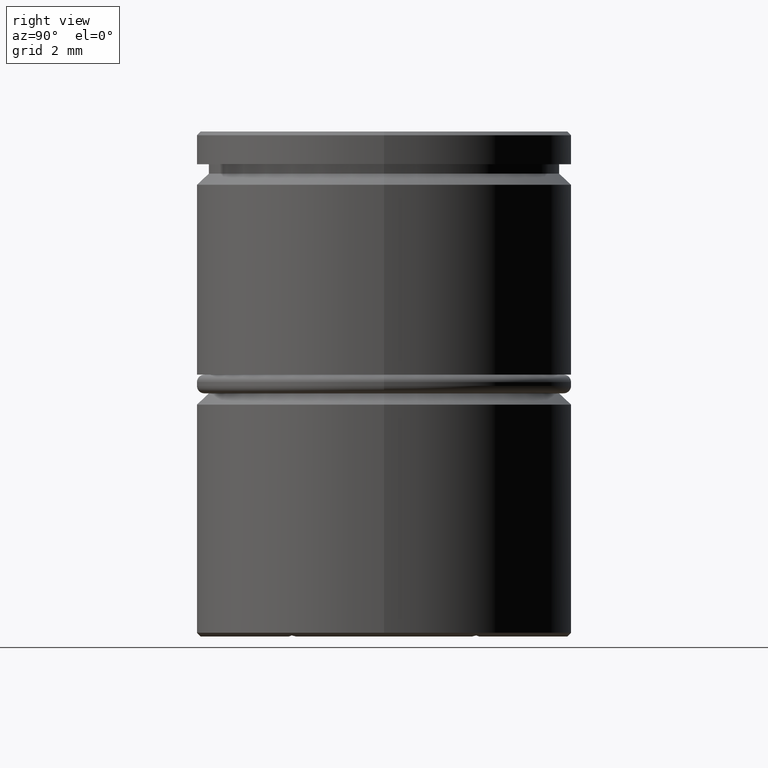
[diagram: clean part render]
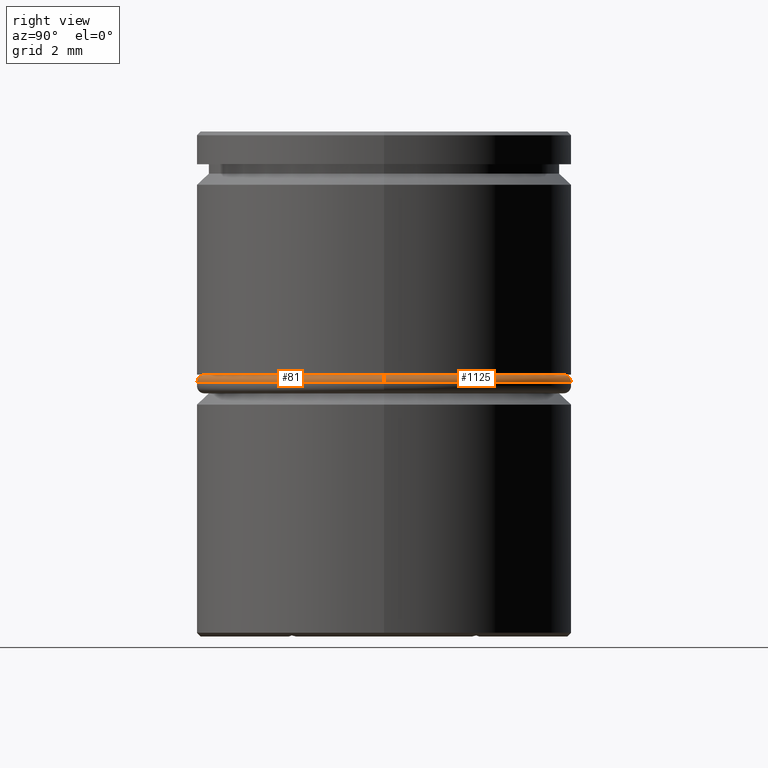
[diagram: same view with one multi-face feature highlighted, each face labeled with its STEP entity id]
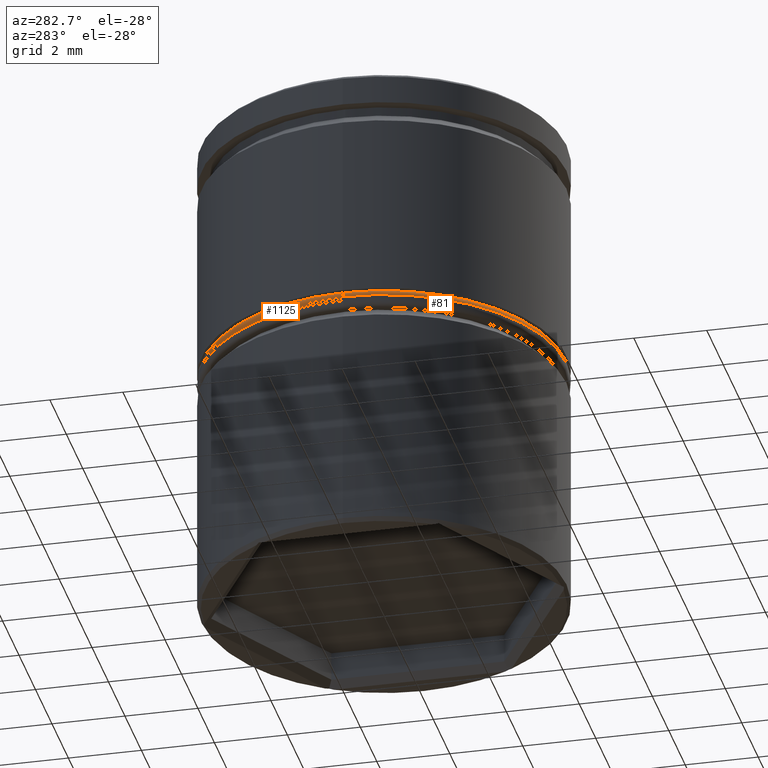
[diagram: same view with one multi-face feature highlighted, each face labeled with its STEP entity id]
A machine part, right view. The highlighted faces form ONE feature: a constant-radius fillet chain: 2 tangent blend faces with common blend radius 0.2 mm. The faces share edges in the B-rep.
A second angle (auxiliary view) of the same feature is appended — it is thin or edge-on in the first view.
Their STEP definitions:
[1] entity #1125 (Torus):
#20 = VERTEX_POINT ( 'NONE', #88 ) ;
#38 = TOROIDAL_SURFACE ( 'NONE', #1225, 4.800000000000000711, 0.2000000000000000111 ) ;
#88 = CARTESIAN_POINT ( 'NONE',  ( -5.000000000000000000, 6.123233995736766282E-16, -6.699999999999997513 ) ) ;
#91 = EDGE_CURVE ( 'NONE', #1377, #684, #1014, .T. ) ;
#100 = DIRECTION ( 'NONE',  ( -1.000000000000000000, -1.224646799147353454E-16, 0.000000000000000000 ) ) ;
#121 = DIRECTION ( 'NONE',  ( -1.000000000000000000, 0.000000000000000000, 0.000000000000000000 ) ) ;
#163 = ORIENTED_EDGE ( 'NONE', *, *, #91, .F. ) ;
#167 = FACE_OUTER_BOUND ( 'NONE', #212, .T. ) ;
#172 = CIRCLE ( 'NONE', #417, 0.1999999999999996503 ) ;
#182 = CARTESIAN_POINT ( 'NONE',  ( 0.000000000000000000, 0.000000000000000000, -6.699999999999997513 ) ) ;
#212 = EDGE_LOOP ( 'NONE', ( #163, #667, #618, #1161 ) ) ;
#373 = AXIS2_PLACEMENT_3D ( 'NONE', #587, #918, #1342 ) ;
#392 = DIRECTION ( 'NONE',  ( 0.000000000000000000, 0.000000000000000000, -1.000000000000000000 ) ) ;
#417 = AXIS2_PLACEMENT_3D ( 'NONE', #1149, #1380, #557 ) ;
#516 = EDGE_CURVE ( 'NONE', #1377, #1163, #1016, .T. ) ;
#545 = EDGE_CURVE ( 'NONE', #684, #20, #172, .T. ) ;
#557 = DIRECTION ( 'NONE',  ( 0.000000000000000000, 0.000000000000000000, -1.000000000000000000 ) ) ;
#587 = CARTESIAN_POINT ( 'NONE',  ( 0.000000000000000000, 0.000000000000000000, -6.699999999999997513 ) ) ;
#603 = CIRCLE ( 'NONE', #373, 5.000000000000000000 ) ;
#618 = ORIENTED_EDGE ( 'NONE', *, *, #1359, .F. ) ;
#635 = CARTESIAN_POINT ( 'NONE',  ( 0.000000000000000000, 0.000000000000000000, -6.499999999999999112 ) ) ;
#667 = ORIENTED_EDGE ( 'NONE', *, *, #516, .T. ) ;
#684 = VERTEX_POINT ( 'NONE', #1286 ) ;
#822 = CARTESIAN_POINT ( 'NONE',  ( 5.000000000000000000, 0.000000000000000000, -6.699999999999997513 ) ) ;
#825 = CARTESIAN_POINT ( 'NONE',  ( 4.800000000000000711, 6.000769315822031726E-16, -6.499999999999999112 ) ) ;
#918 = DIRECTION ( 'NONE',  ( 0.000000000000000000, 0.000000000000000000, -1.000000000000000000 ) ) ;
#920 = DIRECTION ( 'NONE',  ( -1.000000000000000000, 0.000000000000000000, 0.000000000000000000 ) ) ;
#969 = AXIS2_PLACEMENT_3D ( 'NONE', #635, #1375, #121 ) ;
#1014 = CIRCLE ( 'NONE', #969, 4.800000000000000711 ) ;
#1016 = CIRCLE ( 'NONE', #1106, 0.1999999999999996503 ) ;
#1106 = AXIS2_PLACEMENT_3D ( 'NONE', #1272, #1164, #100 ) ;
#1125 = ADVANCED_FACE ( 'NONE', ( #167 ), #38, .T. ) ;
#1149 = CARTESIAN_POINT ( 'NONE',  ( -4.800000000000000711, 0.000000000000000000, -6.699999999999997513 ) ) ;
#1161 = ORIENTED_EDGE ( 'NONE', *, *, #545, .F. ) ;
#1163 = VERTEX_POINT ( 'NONE', #822 ) ;
#1164 = DIRECTION ( 'NONE',  ( -1.224646799147353207E-16, 1.000000000000000000, 0.000000000000000000 ) ) ;
#1225 = AXIS2_PLACEMENT_3D ( 'NONE', #182, #392, #920 ) ;
#1272 = CARTESIAN_POINT ( 'NONE',  ( 4.800000000000000711, 5.878304635907295197E-16, -6.699999999999997513 ) ) ;
#1286 = CARTESIAN_POINT ( 'NONE',  ( -4.800000000000000711, 0.000000000000000000, -6.499999999999999112 ) ) ;
#1342 = DIRECTION ( 'NONE',  ( -1.000000000000000000, 0.000000000000000000, 0.000000000000000000 ) ) ;
#1359 = EDGE_CURVE ( 'NONE', #20, #1163, #603, .T. ) ;
#1375 = DIRECTION ( 'NONE',  ( -0.000000000000000000, -0.000000000000000000, 1.000000000000000000 ) ) ;
#1377 = VERTEX_POINT ( 'NONE', #825 ) ;
#1380 = DIRECTION ( 'NONE',  ( -0.000000000000000000, -1.000000000000000000, -0.000000000000000000 ) ) ;
[2] entity #81 (Torus):
#20 = VERTEX_POINT ( 'NONE', #88 ) ;
#68 = DIRECTION ( 'NONE',  ( 0.000000000000000000, 0.000000000000000000, -1.000000000000000000 ) ) ;
#71 = DIRECTION ( 'NONE',  ( -0.000000000000000000, -0.000000000000000000, 1.000000000000000000 ) ) ;
#81 = ADVANCED_FACE ( 'NONE', ( #740 ), #215, .T. ) ;
#88 = CARTESIAN_POINT ( 'NONE',  ( -5.000000000000000000, 6.123233995736766282E-16, -6.699999999999997513 ) ) ;
#100 = DIRECTION ( 'NONE',  ( -1.000000000000000000, -1.224646799147353454E-16, 0.000000000000000000 ) ) ;
#144 = AXIS2_PLACEMENT_3D ( 'NONE', #1011, #71, #1234 ) ;
#172 = CIRCLE ( 'NONE', #417, 0.1999999999999996503 ) ;
#215 = TOROIDAL_SURFACE ( 'NONE', #238, 4.800000000000000711, 0.2000000000000000111 ) ;
#238 = AXIS2_PLACEMENT_3D ( 'NONE', #448, #655, #642 ) ;
#292 = EDGE_CURVE ( 'NONE', #684, #1377, #573, .T. ) ;
#417 = AXIS2_PLACEMENT_3D ( 'NONE', #1149, #1380, #557 ) ;
#448 = CARTESIAN_POINT ( 'NONE',  ( 0.000000000000000000, 0.000000000000000000, -6.699999999999997513 ) ) ;
#516 = EDGE_CURVE ( 'NONE', #1377, #1163, #1016, .T. ) ;
#545 = EDGE_CURVE ( 'NONE', #684, #20, #172, .T. ) ;
#557 = DIRECTION ( 'NONE',  ( 0.000000000000000000, 0.000000000000000000, -1.000000000000000000 ) ) ;
#573 = CIRCLE ( 'NONE', #144, 4.800000000000000711 ) ;
#642 = DIRECTION ( 'NONE',  ( -1.000000000000000000, 0.000000000000000000, 0.000000000000000000 ) ) ;
#655 = DIRECTION ( 'NONE',  ( 0.000000000000000000, 0.000000000000000000, -1.000000000000000000 ) ) ;
#684 = VERTEX_POINT ( 'NONE', #1286 ) ;
#727 = CIRCLE ( 'NONE', #1089, 5.000000000000000000 ) ;
#740 = FACE_OUTER_BOUND ( 'NONE', #1002, .T. ) ;
#745 = ORIENTED_EDGE ( 'NONE', *, *, #516, .F. ) ;
#815 = ORIENTED_EDGE ( 'NONE', *, *, #1096, .F. ) ;
#822 = CARTESIAN_POINT ( 'NONE',  ( 5.000000000000000000, 0.000000000000000000, -6.699999999999997513 ) ) ;
#825 = CARTESIAN_POINT ( 'NONE',  ( 4.800000000000000711, 6.000769315822031726E-16, -6.499999999999999112 ) ) ;
#1002 = EDGE_LOOP ( 'NONE', ( #745, #1189, #1314, #815 ) ) ;
#1011 = CARTESIAN_POINT ( 'NONE',  ( 0.000000000000000000, 0.000000000000000000, -6.499999999999999112 ) ) ;
#1016 = CIRCLE ( 'NONE', #1106, 0.1999999999999996503 ) ;
#1027 = DIRECTION ( 'NONE',  ( -1.000000000000000000, 0.000000000000000000, 0.000000000000000000 ) ) ;
#1089 = AXIS2_PLACEMENT_3D ( 'NONE', #1243, #68, #1027 ) ;
#1096 = EDGE_CURVE ( 'NONE', #1163, #20, #727, .T. ) ;
#1106 = AXIS2_PLACEMENT_3D ( 'NONE', #1272, #1164, #100 ) ;
#1149 = CARTESIAN_POINT ( 'NONE',  ( -4.800000000000000711, 0.000000000000000000, -6.699999999999997513 ) ) ;
#1163 = VERTEX_POINT ( 'NONE', #822 ) ;
#1164 = DIRECTION ( 'NONE',  ( -1.224646799147353207E-16, 1.000000000000000000, 0.000000000000000000 ) ) ;
#1189 = ORIENTED_EDGE ( 'NONE', *, *, #292, .F. ) ;
#1234 = DIRECTION ( 'NONE',  ( -1.000000000000000000, 0.000000000000000000, 0.000000000000000000 ) ) ;
#1243 = CARTESIAN_POINT ( 'NONE',  ( 0.000000000000000000, 0.000000000000000000, -6.699999999999997513 ) ) ;
#1272 = CARTESIAN_POINT ( 'NONE',  ( 4.800000000000000711, 5.878304635907295197E-16, -6.699999999999997513 ) ) ;
#1286 = CARTESIAN_POINT ( 'NONE',  ( -4.800000000000000711, 0.000000000000000000, -6.499999999999999112 ) ) ;
#1314 = ORIENTED_EDGE ( 'NONE', *, *, #545, .T. ) ;
#1377 = VERTEX_POINT ( 'NONE', #825 ) ;
#1380 = DIRECTION ( 'NONE',  ( -0.000000000000000000, -1.000000000000000000, -0.000000000000000000 ) ) ;